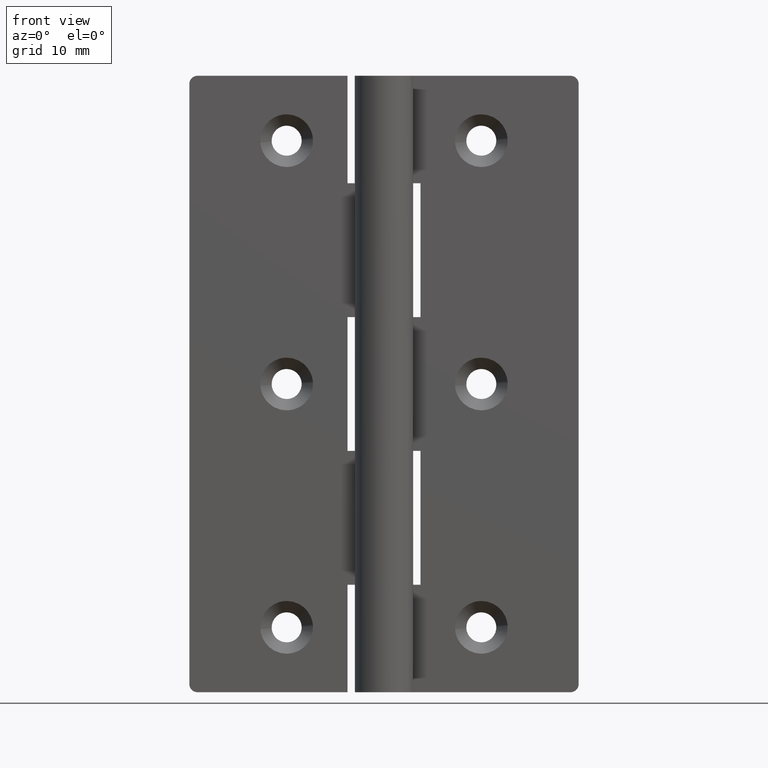
[diagram: clean part render]
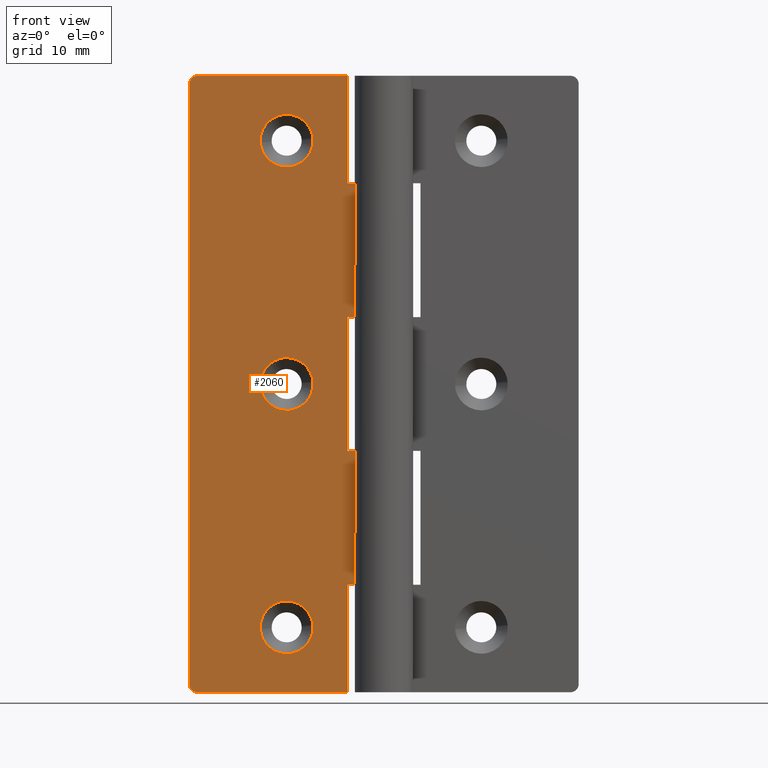
[diagram: same view with one face highlighted and labeled with its STEP entity id]
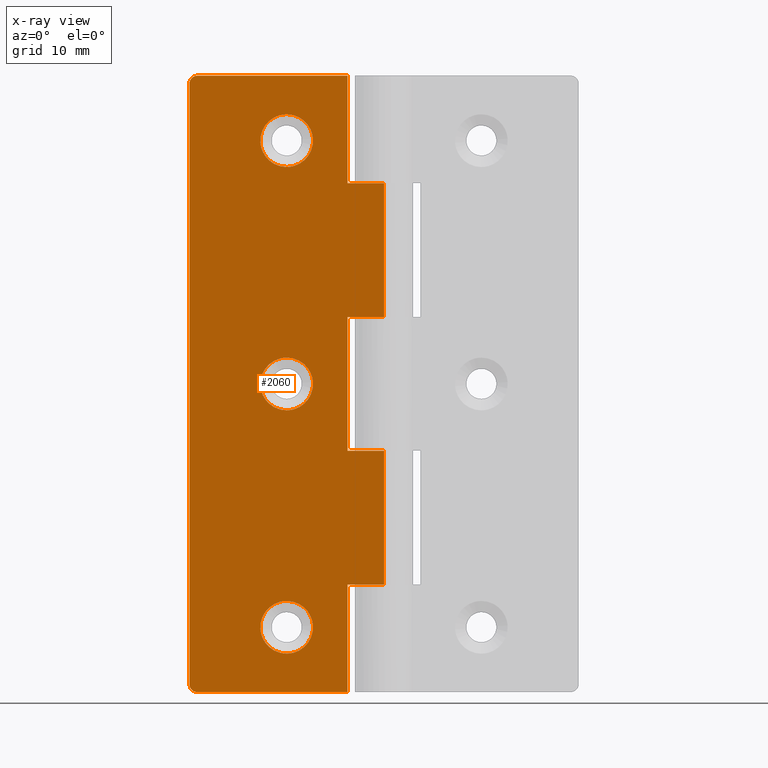
[diagram: x-ray of the same camera — body ghosted, the highlighted face saturated]
A machine part, front view. The second image highlights one B-rep face of the part: STEP entity #2060.
The next image is the same camera in x-ray: the body ghosted, the highlighted face saturated — about 0% of this face is hidden behind the body in this view.
In plain terms, the highlighted face is a freeform B-spline surface patch.
Its self-contained STEP definition (entity closure, byte-faithful):
#515=CARTESIAN_POINT('',(-8.760018665352991,1.999999999963528,68.255000061398107));
#516=VERTEX_POINT('',#515);
#522=CARTESIAN_POINT('',(-12.0,2.0,71.250008000000008));
#523=VERTEX_POINT('',#522);
#524=CARTESIAN_POINT('',(-12.0,2.0,71.250008000000008));
#525=CARTESIAN_POINT('',(-8.995730902631246,2.000000000000000,71.250008000000008));
#526=CARTESIAN_POINT('',(-8.760018665352991,1.999999999963527,68.255000061398107));
#534=(BOUNDED_CURVE()B_SPLINE_CURVE(2,(#524,#525,#526),.UNSPECIFIED.,.F.,.U.)B_SPLINE_CURVE_WITH_KNOTS((3,3),(0.0,0.236331300603163),.UNSPECIFIED.)CURVE()GEOMETRIC_REPRESENTATION_ITEM()RATIONAL_B_SPLINE_CURVE((1.0,0.723120658639880,0.969723356110035))REPRESENTATION_ITEM(''));
#535=EDGE_CURVE('',#523,#516,#534,.T.);
#537=CARTESIAN_POINT('',(-15.239981334647011,1.999999999963528,67.745015938601881));
#538=VERTEX_POINT('',#537);
#539=CARTESIAN_POINT('',(-15.239981334647013,1.999999999963528,67.745015938601881));
#540=CARTESIAN_POINT('',(-15.249999999999998,2.000000000000000,67.872315151944008));
#541=CARTESIAN_POINT('',(-15.250000000000000,2.0,68.000007999999994));
#542=CARTESIAN_POINT('',(-15.250000000000002,2.0,71.250008000000008));
#543=CARTESIAN_POINT('',(-12.0,2.0,71.250008000000008));
#551=(BOUNDED_CURVE()B_SPLINE_CURVE(2,(#539,#540,#541,#542,#543),.UNSPECIFIED.,.F.,.U.)B_SPLINE_CURVE_WITH_KNOTS((3,2,3),(0.736331300603164,0.750000000000000,1.0),.UNSPECIFIED.)CURVE()GEOMETRIC_REPRESENTATION_ITEM()RATIONAL_B_SPLINE_CURVE((0.969723356110036,0.983986122546668,1.0,0.707106781186547,1.0))REPRESENTATION_ITEM(''));
#552=EDGE_CURVE('',#538,#523,#551,.T.);
#589=CARTESIAN_POINT('',(-12.0,2.0,64.750007999999994));
#590=VERTEX_POINT('',#589);
#591=CARTESIAN_POINT('',(-12.0,2.0,64.750007999999994));
#592=CARTESIAN_POINT('',(-15.004269097368745,2.000000000000000,64.750007999999994));
#593=CARTESIAN_POINT('',(-15.239981334647007,1.999999999963528,67.745015938601881));
#601=(BOUNDED_CURVE()B_SPLINE_CURVE(2,(#591,#592,#593),.UNSPECIFIED.,.F.,.U.)B_SPLINE_CURVE_WITH_KNOTS((3,3),(0.500000000000000,0.736331300603163),.UNSPECIFIED.)CURVE()GEOMETRIC_REPRESENTATION_ITEM()RATIONAL_B_SPLINE_CURVE((1.0,0.723120658639880,0.969723356110035))REPRESENTATION_ITEM(''));
#602=EDGE_CURVE('',#590,#538,#601,.T.);
#604=CARTESIAN_POINT('',(-8.760018665352991,1.999999999963527,68.255000061398107));
#605=CARTESIAN_POINT('',(-8.749999999999998,2.000000000000000,68.127700848055980));
#606=CARTESIAN_POINT('',(-8.750000000000000,2.0,68.000007999999994));
#607=CARTESIAN_POINT('',(-8.750000000000000,2.0,64.750007999999980));
#608=CARTESIAN_POINT('',(-12.0,2.0,64.750007999999994));
#616=(BOUNDED_CURVE()B_SPLINE_CURVE(2,(#604,#605,#606,#607,#608),.UNSPECIFIED.,.F.,.U.)B_SPLINE_CURVE_WITH_KNOTS((3,2,3),(0.236331300603163,0.250000000000000,0.500000000000000),.UNSPECIFIED.)CURVE()GEOMETRIC_REPRESENTATION_ITEM()RATIONAL_B_SPLINE_CURVE((0.969723356110035,0.983986122546668,1.0,0.707106781186547,1.0))REPRESENTATION_ITEM(''));
#617=EDGE_CURVE('',#516,#590,#616,.T.);
#843=CARTESIAN_POINT('',(-8.760018665352993,1.999999999963528,38.255000061398107));
#844=VERTEX_POINT('',#843);
#850=CARTESIAN_POINT('',(-12.0,2.0,41.250008000000008));
#851=VERTEX_POINT('',#850);
#852=CARTESIAN_POINT('',(-12.0,2.0,41.250008000000008));
#853=CARTESIAN_POINT('',(-8.995730902631230,2.0,41.250008000000001));
#854=CARTESIAN_POINT('',(-8.760018665352993,1.999999999963527,38.255000061398114));
#862=(BOUNDED_CURVE()B_SPLINE_CURVE(2,(#852,#853,#854),.UNSPECIFIED.,.F.,.U.)B_SPLINE_CURVE_WITH_KNOTS((3,3),(0.0,0.236331300603164),.UNSPECIFIED.)CURVE()GEOMETRIC_REPRESENTATION_ITEM()RATIONAL_B_SPLINE_CURVE((1.0,0.723120658639879,0.969723356110037))REPRESENTATION_ITEM(''));
#863=EDGE_CURVE('',#851,#844,#862,.T.);
#865=CARTESIAN_POINT('',(-15.239981334647011,1.999999999963528,37.745015938601881));
#866=VERTEX_POINT('',#865);
#867=CARTESIAN_POINT('',(-15.239981334647013,1.999999999963528,37.745015938601881));
#868=CARTESIAN_POINT('',(-15.249999999999998,2.000000000000000,37.872315151944022));
#869=CARTESIAN_POINT('',(-15.250000000000000,2.0,38.000008000000001));
#870=CARTESIAN_POINT('',(-15.250000000000002,2.0,41.250008000000008));
#871=CARTESIAN_POINT('',(-12.0,2.0,41.250008000000008));
#879=(BOUNDED_CURVE()B_SPLINE_CURVE(2,(#867,#868,#869,#870,#871),.UNSPECIFIED.,.F.,.U.)B_SPLINE_CURVE_WITH_KNOTS((3,2,3),(0.736331300603164,0.750000000000000,1.0),.UNSPECIFIED.)CURVE()GEOMETRIC_REPRESENTATION_ITEM()RATIONAL_B_SPLINE_CURVE((0.969723356110036,0.983986122546668,1.0,0.707106781186547,1.0))REPRESENTATION_ITEM(''));
#880=EDGE_CURVE('',#866,#851,#879,.T.);
#917=CARTESIAN_POINT('',(-12.0,2.0,34.750008000000001));
#918=VERTEX_POINT('',#917);
#919=CARTESIAN_POINT('',(-12.0,2.0,34.750008000000001));
#920=CARTESIAN_POINT('',(-15.004269097368745,2.000000000000000,34.750008000000001));
#921=CARTESIAN_POINT('',(-15.239981334647007,1.999999999963528,37.745015938601881));
#929=(BOUNDED_CURVE()B_SPLINE_CURVE(2,(#919,#920,#921),.UNSPECIFIED.,.F.,.U.)B_SPLINE_CURVE_WITH_KNOTS((3,3),(0.500000000000000,0.736331300603163),.UNSPECIFIED.)CURVE()GEOMETRIC_REPRESENTATION_ITEM()RATIONAL_B_SPLINE_CURVE((1.0,0.723120658639880,0.969723356110035))REPRESENTATION_ITEM(''));
#930=EDGE_CURVE('',#918,#866,#929,.T.);
#932=CARTESIAN_POINT('',(-8.760018665352993,1.999999999963528,38.255000061398114));
#933=CARTESIAN_POINT('',(-8.750000000000000,2.000000000000000,38.127700848055994));
#934=CARTESIAN_POINT('',(-8.750000000000000,2.0,38.000008000000001));
#935=CARTESIAN_POINT('',(-8.750000000000000,2.0,34.750008000000008));
#936=CARTESIAN_POINT('',(-12.0,2.0,34.750008000000001));
#944=(BOUNDED_CURVE()B_SPLINE_CURVE(2,(#932,#933,#934,#935,#936),.UNSPECIFIED.,.F.,.U.)B_SPLINE_CURVE_WITH_KNOTS((3,2,3),(0.236331300603164,0.250000000000000,0.500000000000000),.UNSPECIFIED.)CURVE()GEOMETRIC_REPRESENTATION_ITEM()RATIONAL_B_SPLINE_CURVE((0.969723356110036,0.983986122546669,1.0,0.707106781186547,1.0))REPRESENTATION_ITEM(''));
#945=EDGE_CURVE('',#844,#918,#944,.T.);
#1171=CARTESIAN_POINT('',(-8.760018665352991,1.999999999963528,8.254992061398001));
#1172=VERTEX_POINT('',#1171);
#1178=CARTESIAN_POINT('',(-12.0,2.0,11.249999999999890));
#1179=VERTEX_POINT('',#1178);
#1180=CARTESIAN_POINT('',(-12.0,2.0,11.249999999999890));
#1181=CARTESIAN_POINT('',(-8.995730902631234,2.000000000000000,11.249999999999888));
#1182=CARTESIAN_POINT('',(-8.760018665352991,1.999999999963528,8.254992061398001));
#1190=(BOUNDED_CURVE()B_SPLINE_CURVE(2,(#1180,#1181,#1182),.UNSPECIFIED.,.F.,.U.)B_SPLINE_CURVE_WITH_KNOTS((3,3),(0.0,0.236331300603164),.UNSPECIFIED.)CURVE()GEOMETRIC_REPRESENTATION_ITEM()RATIONAL_B_SPLINE_CURVE((1.0,0.723120658639879,0.969723356110036))REPRESENTATION_ITEM(''));
#1191=EDGE_CURVE('',#1179,#1172,#1190,.T.);
#1193=CARTESIAN_POINT('',(-15.239981334647011,1.999999999963528,7.745007938601777));
#1194=VERTEX_POINT('',#1193);
#1195=CARTESIAN_POINT('',(-15.239981334647013,1.999999999963528,7.745007938601777));
#1196=CARTESIAN_POINT('',(-15.250000000000002,2.000000000000000,7.872307151943910));
#1197=CARTESIAN_POINT('',(-15.250000000000000,2.0,7.999999999999889));
#1198=CARTESIAN_POINT('',(-15.250000000000002,2.0,11.249999999999886));
#1199=CARTESIAN_POINT('',(-12.0,2.0,11.249999999999890));
#1207=(BOUNDED_CURVE()B_SPLINE_CURVE(2,(#1195,#1196,#1197,#1198,#1199),.UNSPECIFIED.,.F.,.U.)B_SPLINE_CURVE_WITH_KNOTS((3,2,3),(0.736331300603164,0.750000000000000,1.0),.UNSPECIFIED.)CURVE()GEOMETRIC_REPRESENTATION_ITEM()RATIONAL_B_SPLINE_CURVE((0.969723356110036,0.983986122546669,1.0,0.707106781186547,1.0))REPRESENTATION_ITEM(''));
#1208=EDGE_CURVE('',#1194,#1179,#1207,.T.);
#1245=CARTESIAN_POINT('',(-12.0,2.0,4.749999999999890));
#1246=VERTEX_POINT('',#1245);
#1247=CARTESIAN_POINT('',(-12.0,2.0,4.749999999999890));
#1248=CARTESIAN_POINT('',(-15.004269097368745,2.000000000000000,4.749999999999888));
#1249=CARTESIAN_POINT('',(-15.239981334647007,1.999999999963528,7.745007938601777));
#1257=(BOUNDED_CURVE()B_SPLINE_CURVE(2,(#1247,#1248,#1249),.UNSPECIFIED.,.F.,.U.)B_SPLINE_CURVE_WITH_KNOTS((3,3),(0.500000000000000,0.736331300603163),.UNSPECIFIED.)CURVE()GEOMETRIC_REPRESENTATION_ITEM()RATIONAL_B_SPLINE_CURVE((1.0,0.723120658639880,0.969723356110035))REPRESENTATION_ITEM(''));
#1258=EDGE_CURVE('',#1246,#1194,#1257,.T.);
#1260=CARTESIAN_POINT('',(-8.760018665352991,1.999999999963528,8.254992061398001));
#1261=CARTESIAN_POINT('',(-8.750000000000000,2.000000000000000,8.127692848055867));
#1262=CARTESIAN_POINT('',(-8.750000000000000,2.0,7.999999999999889));
#1263=CARTESIAN_POINT('',(-8.750000000000000,2.0,4.749999999999891));
#1264=CARTESIAN_POINT('',(-12.0,2.0,4.749999999999890));
#1272=(BOUNDED_CURVE()B_SPLINE_CURVE(2,(#1260,#1261,#1262,#1263,#1264),.UNSPECIFIED.,.F.,.U.)B_SPLINE_CURVE_WITH_KNOTS((3,2,3),(0.236331300603164,0.250000000000000,0.500000000000000),.UNSPECIFIED.)CURVE()GEOMETRIC_REPRESENTATION_ITEM()RATIONAL_B_SPLINE_CURVE((0.969723356110036,0.983986122546669,1.0,0.707106781186547,1.0))REPRESENTATION_ITEM(''));
#1273=EDGE_CURVE('',#1172,#1246,#1272,.T.);
#1310=CARTESIAN_POINT('',(-24.0,2.0,75.000008000000008));
#1311=VERTEX_POINT('',#1310);
#1317=CARTESIAN_POINT('',(-23.0,2.0,76.000007999999994));
#1318=VERTEX_POINT('',#1317);
#1319=CARTESIAN_POINT('',(-23.0,2.0,76.000008000000008));
#1320=CARTESIAN_POINT('',(-23.999999999999996,2.000000000000000,76.000008000000008));
#1321=CARTESIAN_POINT('',(-24.0,2.0,75.000008000000008));
#1329=(BOUNDED_CURVE()B_SPLINE_CURVE(2,(#1319,#1320,#1321),.UNSPECIFIED.,.F.,.U.)CURVE()GEOMETRIC_REPRESENTATION_ITEM()QUASI_UNIFORM_CURVE()RATIONAL_B_SPLINE_CURVE((1.0,0.707106781186548,1.0))REPRESENTATION_ITEM(''));
#1330=EDGE_CURVE('',#1318,#1311,#1329,.T.);
#1371=CARTESIAN_POINT('',(-23.0,2.0,0.0));
#1372=VERTEX_POINT('',#1371);
#1378=CARTESIAN_POINT('',(-24.0,2.0,1.0));
#1379=VERTEX_POINT('',#1378);
#1380=CARTESIAN_POINT('',(-24.0,2.0,1.0));
#1381=CARTESIAN_POINT('',(-23.999999999999996,2.000000000000000,0.0));
#1382=CARTESIAN_POINT('',(-23.0,2.0,0.0));
#1390=(BOUNDED_CURVE()B_SPLINE_CURVE(2,(#1380,#1381,#1382),.UNSPECIFIED.,.F.,.U.)CURVE()GEOMETRIC_REPRESENTATION_ITEM()QUASI_UNIFORM_CURVE()RATIONAL_B_SPLINE_CURVE((1.0,0.707106781186548,1.0))REPRESENTATION_ITEM(''));
#1391=EDGE_CURVE('',#1379,#1372,#1390,.T.);
#1408=CARTESIAN_POINT('',(0.0,2.0,29.750000000000000));
#1409=VERTEX_POINT('',#1408);
#1464=CARTESIAN_POINT('',(-4.499999999999915,2.0,29.750000000000000));
#1465=VERTEX_POINT('',#1464);
#1471=CARTESIAN_POINT('',(0.0,2.0,29.750000000000000));
#1472=CARTESIAN_POINT('',(-4.499999999999915,2.0,29.750000000000000));
#1473=QUASI_UNIFORM_CURVE('',1,(#1471,#1472),.UNSPECIFIED.,.F.,.U.);
#1474=EDGE_CURVE('',#1409,#1465,#1473,.T.);
#1484=CARTESIAN_POINT('',(-4.499999999999915,2.0,46.250008000000001));
#1485=VERTEX_POINT('',#1484);
#1528=CARTESIAN_POINT('',(0.0,2.0,46.250008000000001));
#1529=VERTEX_POINT('',#1528);
#1549=CARTESIAN_POINT('',(-4.499999999999915,2.0,46.250008000000001));
#1550=CARTESIAN_POINT('',(0.0,2.0,46.250008000000001));
#1551=QUASI_UNIFORM_CURVE('',1,(#1549,#1550),.UNSPECIFIED.,.F.,.U.);
#1552=EDGE_CURVE('',#1485,#1529,#1551,.T.);
#1569=CARTESIAN_POINT('',(-4.499999999999915,2.0,29.750000000000000));
#1570=CARTESIAN_POINT('',(-4.499999999999915,2.0,46.250008000000001));
#1571=QUASI_UNIFORM_CURVE('',1,(#1569,#1570),.UNSPECIFIED.,.F.,.U.);
#1572=EDGE_CURVE('',#1465,#1485,#1571,.T.);
#1582=CARTESIAN_POINT('',(-4.499999999999915,2.0,0.0));
#1583=VERTEX_POINT('',#1582);
#1598=CARTESIAN_POINT('',(-4.499999999999915,2.0,13.250000000000000));
#1599=VERTEX_POINT('',#1598);
#1605=CARTESIAN_POINT('',(-4.499999999999915,2.0,0.0));
#1606=CARTESIAN_POINT('',(-4.499999999999915,2.0,13.250000000000000));
#1607=QUASI_UNIFORM_CURVE('',1,(#1605,#1606),.UNSPECIFIED.,.F.,.U.);
#1608=EDGE_CURVE('',#1583,#1599,#1607,.T.);
#1654=CARTESIAN_POINT('',(0.0,2.0,13.250000000000000));
#1655=VERTEX_POINT('',#1654);
#1675=CARTESIAN_POINT('',(-4.499999999999915,2.0,13.250000000000000));
#1676=CARTESIAN_POINT('',(0.0,2.0,13.250000000000000));
#1677=QUASI_UNIFORM_CURVE('',1,(#1675,#1676),.UNSPECIFIED.,.F.,.U.);
#1678=EDGE_CURVE('',#1599,#1655,#1677,.T.);
#1688=CARTESIAN_POINT('',(-4.499999999999915,2.0,62.750007999999987));
#1689=VERTEX_POINT('',#1688);
#1704=CARTESIAN_POINT('',(-4.499999999999915,2.0,76.000007999999994));
#1705=VERTEX_POINT('',#1704);
#1711=CARTESIAN_POINT('',(-4.499999999999915,2.0,62.750007999999987));
#1712=CARTESIAN_POINT('',(-4.499999999999915,2.0,76.000007999999994));
#1713=QUASI_UNIFORM_CURVE('',1,(#1711,#1712),.UNSPECIFIED.,.F.,.U.);
#1714=EDGE_CURVE('',#1689,#1705,#1713,.T.);
#1726=CARTESIAN_POINT('',(0.0,2.0,62.750007999999987));
#1727=VERTEX_POINT('',#1726);
#1781=CARTESIAN_POINT('',(0.0,2.0,62.750007999999987));
#1782=CARTESIAN_POINT('',(-4.499999999999915,2.0,62.750007999999987));
#1783=QUASI_UNIFORM_CURVE('',1,(#1781,#1782),.UNSPECIFIED.,.F.,.U.);
#1784=EDGE_CURVE('',#1727,#1689,#1783,.T.);
#1794=CARTESIAN_POINT('',(-23.0,2.0,0.0));
#1795=CARTESIAN_POINT('',(-4.499999999999915,2.0,0.0));
#1796=QUASI_UNIFORM_CURVE('',1,(#1794,#1795),.UNSPECIFIED.,.F.,.U.);
#1797=EDGE_CURVE('',#1372,#1583,#1796,.T.);
#1820=CARTESIAN_POINT('',(-23.0,2.0,76.000007999999994));
#1821=CARTESIAN_POINT('',(-4.499999999999915,2.0,76.000007999999994));
#1822=QUASI_UNIFORM_CURVE('',1,(#1820,#1821),.UNSPECIFIED.,.F.,.U.);
#1823=EDGE_CURVE('',#1318,#1705,#1822,.T.);
#1910=CARTESIAN_POINT('',(0.0,2.0,29.750000000000000));
#1911=CARTESIAN_POINT('',(0.0,2.0,13.250000000000000));
#1912=QUASI_UNIFORM_CURVE('',1,(#1910,#1911),.UNSPECIFIED.,.F.,.U.);
#1913=EDGE_CURVE('',#1409,#1655,#1912,.T.);
#1930=CARTESIAN_POINT('',(-24.0,2.0,75.000008000000008));
#1931=CARTESIAN_POINT('',(-24.0,2.0,1.0));
#1932=QUASI_UNIFORM_CURVE('',1,(#1930,#1931),.UNSPECIFIED.,.F.,.U.);
#1933=EDGE_CURVE('',#1311,#1379,#1932,.T.);
#2010=CARTESIAN_POINT('',(0.0,2.0,62.750007999999987));
#2011=CARTESIAN_POINT('',(0.0,2.0,46.250008000000001));
#2012=QUASI_UNIFORM_CURVE('',1,(#2010,#2011),.UNSPECIFIED.,.F.,.U.);
#2013=EDGE_CURVE('',#1727,#1529,#2012,.T.);
#2021=CARTESIAN_POINT('',(-25.198799953483348,2.0,-3.796200252297235));
#2022=CARTESIAN_POINT('',(-25.198799953483348,2.0,79.796210290776287));
#2023=CARTESIAN_POINT('',(1.198800597213505,2.0,-3.796200252297235));
#2024=CARTESIAN_POINT('',(1.198800597213505,2.0,79.796210290776301));
#2025=B_SPLINE_SURFACE_WITH_KNOTS('',1,1,((#2021,#2023),(#2022,#2024)),.UNSPECIFIED.,.F.,.F.,.U.,(2,2),(2,2),(0.0,83.592410543073541),(0.0,26.397600550696851),.UNSPECIFIED.);
#2026=ORIENTED_EDGE('',*,*,#1933,.T.);
#2027=ORIENTED_EDGE('',*,*,#1391,.T.);
#2028=ORIENTED_EDGE('',*,*,#1797,.T.);
#2029=ORIENTED_EDGE('',*,*,#1608,.T.);
#2030=ORIENTED_EDGE('',*,*,#1678,.T.);
#2031=ORIENTED_EDGE('',*,*,#1913,.F.);
#2032=ORIENTED_EDGE('',*,*,#1474,.T.);
#2033=ORIENTED_EDGE('',*,*,#1572,.T.);
#2034=ORIENTED_EDGE('',*,*,#1552,.T.);
#2035=ORIENTED_EDGE('',*,*,#2013,.F.);
#2036=ORIENTED_EDGE('',*,*,#1784,.T.);
#2037=ORIENTED_EDGE('',*,*,#1714,.T.);
#2038=ORIENTED_EDGE('',*,*,#1823,.F.);
#2039=ORIENTED_EDGE('',*,*,#1330,.T.);
#2040=EDGE_LOOP('',(#2026,#2027,#2028,#2029,#2030,#2031,#2032,#2033,#2034,#2035,#2036,#2037,#2038,#2039));
#2041=FACE_OUTER_BOUND('',#2040,.T.);
#2042=ORIENTED_EDGE('',*,*,#1258,.T.);
#2043=ORIENTED_EDGE('',*,*,#1208,.T.);
#2044=ORIENTED_EDGE('',*,*,#1191,.T.);
#2045=ORIENTED_EDGE('',*,*,#1273,.T.);
#2046=EDGE_LOOP('',(#2042,#2043,#2044,#2045));
#2047=FACE_BOUND('',#2046,.T.);
#2048=ORIENTED_EDGE('',*,*,#930,.T.);
#2049=ORIENTED_EDGE('',*,*,#880,.T.);
#2050=ORIENTED_EDGE('',*,*,#863,.T.);
#2051=ORIENTED_EDGE('',*,*,#945,.T.);
#2052=EDGE_LOOP('',(#2048,#2049,#2050,#2051));
#2053=FACE_BOUND('',#2052,.T.);
#2054=ORIENTED_EDGE('',*,*,#602,.T.);
#2055=ORIENTED_EDGE('',*,*,#552,.T.);
#2056=ORIENTED_EDGE('',*,*,#535,.T.);
#2057=ORIENTED_EDGE('',*,*,#617,.T.);
#2058=EDGE_LOOP('',(#2054,#2055,#2056,#2057));
#2059=FACE_BOUND('',#2058,.T.);
#2060=ADVANCED_FACE('',(#2041,#2047,#2053,#2059),#2025,.F.);